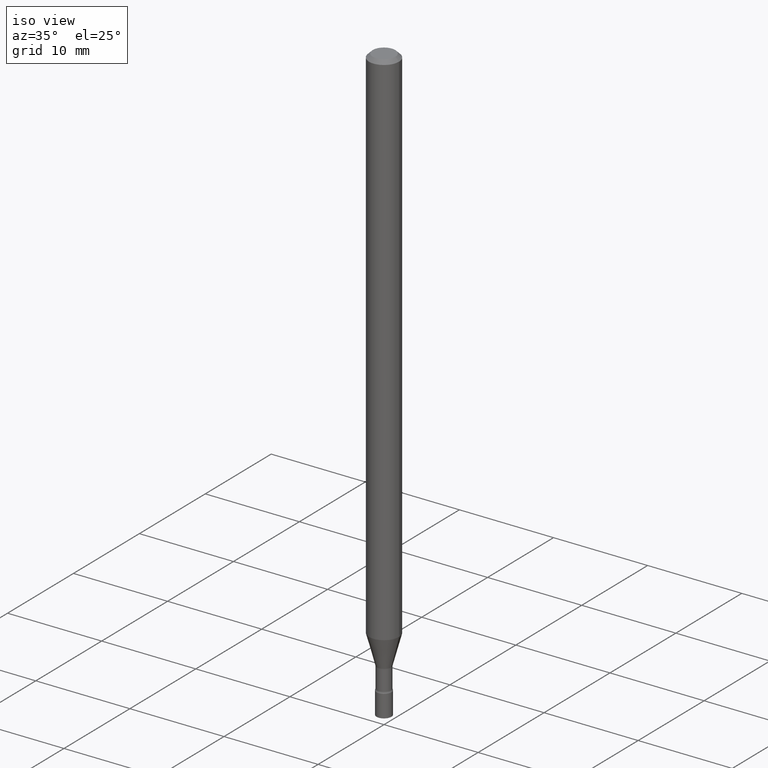
[diagram: clean part render]
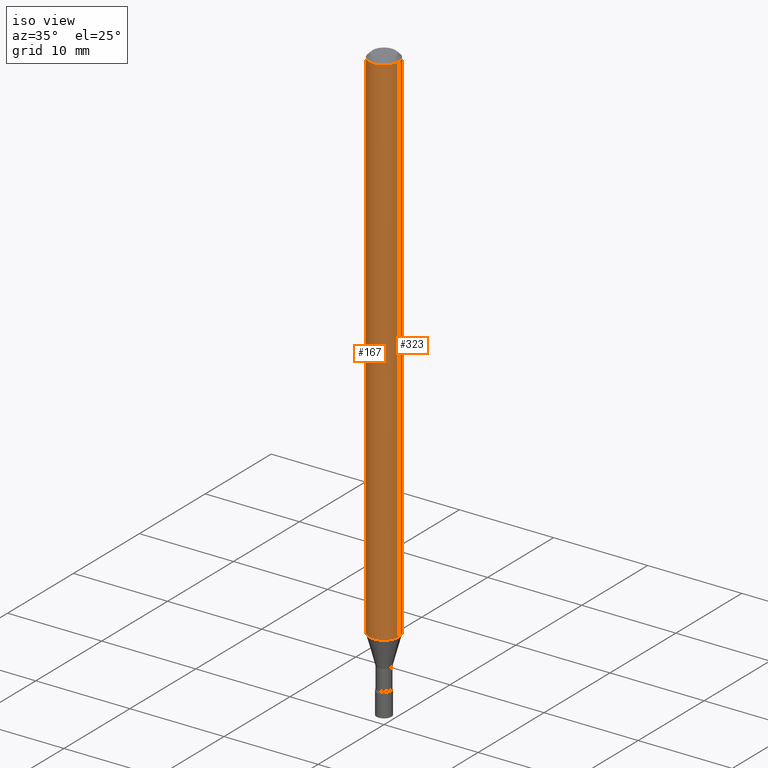
[diagram: same view with one multi-face feature highlighted, each face labeled with its STEP entity id]
A machine part, iso view. The highlighted faces form ONE feature: a constant-radius fillet chain: 2 tangent blend faces with common blend radius 1.5875 mm. The faces share edges in the B-rep.
Their STEP definitions:
[1] entity #323 (Cylinder):
#8 = CARTESIAN_POINT ( 'NONE',  ( 3.668203209277712094E-31, -5.237222008264728876E-17, -0.01500000000000003067 ) ) ;
#12 = CARTESIAN_POINT ( 'NONE',  ( 0.06250000000000000000, -4.888073874380389458E-16, -0.01500000000000003067 ) ) ;
#26 = CARTESIAN_POINT ( 'NONE',  ( -0.06250000000000000000, -7.200635243462433046E-15, -2.189536105567578161 ) ) ;
#30 = ORIENTED_EDGE ( 'NONE', *, *, #341, .F. ) ;
#38 = VERTEX_POINT ( 'NONE', #12 ) ;
#45 = EDGE_CURVE ( 'NONE', #513, #372, #113, .T. ) ;
#74 = AXIS2_PLACEMENT_3D ( 'NONE', #187, #230, #183 ) ;
#83 = EDGE_CURVE ( 'NONE', #372, #371, #93, .T. ) ;
#90 = DIRECTION ( 'NONE',  ( -2.445468806185136597E-29, 3.491481338843145583E-15, 1.000000000000000000 ) ) ;
#93 = LINE ( 'NONE', #208, #289 ) ;
#99 = EDGE_CURVE ( 'NONE', #38, #371, #427, .T. ) ;
#113 = CIRCLE ( 'NONE', #254, 0.06250000000000000000 ) ;
#117 = ORIENTED_EDGE ( 'NONE', *, *, #45, .T. ) ;
#127 = EDGE_LOOP ( 'NONE', ( #117, #160, #238, #30 ) ) ;
#137 = CARTESIAN_POINT ( 'NONE',  ( 5.354442246181599282E-29, -7.644724453312494084E-15, -2.189536105567578161 ) ) ;
#155 = DIRECTION ( 'NONE',  ( -2.445468806185136877E-29, 3.491481338843145188E-15, 1.000000000000000000 ) ) ;
#160 = ORIENTED_EDGE ( 'NONE', *, *, #83, .T. ) ;
#176 = DIRECTION ( 'NONE',  ( -2.445468806185136597E-29, 3.491481338843145583E-15, 1.000000000000000000 ) ) ;
#183 = DIRECTION ( 'NONE',  ( 1.000000000000000000, -6.982962677686266711E-15, 4.876176775795935793E-29 ) ) ;
#186 = AXIS2_PLACEMENT_3D ( 'NONE', #8, #176, #294 ) ;
#187 = CARTESIAN_POINT ( 'NONE',  ( 0.000000000000000000, 0.000000000000000000, 0.000000000000000000 ) ) ;
#190 = CARTESIAN_POINT ( 'NONE',  ( 0.06250000000000000000, -4.364351673553916694E-16, 3.047610484872459871E-30 ) ) ;
#208 = CARTESIAN_POINT ( 'NONE',  ( -0.06250000000000000000, 4.440892098500626162E-16, -3.074334431409316114E-30 ) ) ;
#220 = FACE_OUTER_BOUND ( 'NONE', #127, .T. ) ;
#225 = LINE ( 'NONE', #190, #370 ) ;
#230 = DIRECTION ( 'NONE',  ( -2.445468806185136597E-29, 3.491481338843145583E-15, 1.000000000000000000 ) ) ;
#238 = ORIENTED_EDGE ( 'NONE', *, *, #99, .F. ) ;
#246 = DIRECTION ( 'NONE',  ( 1.000000000000000000, -6.982962677686262766E-15, 0.000000000000000000 ) ) ;
#254 = AXIS2_PLACEMENT_3D ( 'NONE', #137, #90, #246 ) ;
#289 = VECTOR ( 'NONE', #325, 39.37007874015748143 ) ;
#294 = DIRECTION ( 'NONE',  ( 1.000000000000000000, -6.982962677686266711E-15, 0.000000000000000000 ) ) ;
#315 = CYLINDRICAL_SURFACE ( 'NONE', #74, 0.06250000000000000000 ) ;
#323 = ADVANCED_FACE ( 'NONE', ( #220 ), #315, .T. ) ;
#325 = DIRECTION ( 'NONE',  ( -2.445468806185136877E-29, 3.491481338843145188E-15, 1.000000000000000000 ) ) ;
#341 = EDGE_CURVE ( 'NONE', #513, #38, #225, .T. ) ;
#345 = CARTESIAN_POINT ( 'NONE',  ( -0.06250000000000000000, -3.404459126847508557E-15, -0.01500000000000003067 ) ) ;
#370 = VECTOR ( 'NONE', #155, 39.37007874015748143 ) ;
#371 = VERTEX_POINT ( 'NONE', #345 ) ;
#372 = VERTEX_POINT ( 'NONE', #26 ) ;
#427 = CIRCLE ( 'NONE', #186, 0.06250000000000000000 ) ;
#489 = CARTESIAN_POINT ( 'NONE',  ( 0.06250000000000000000, -8.081159620667887331E-15, -2.189536105567578161 ) ) ;
#513 = VERTEX_POINT ( 'NONE', #489 ) ;
[2] entity #167 (Cylinder):
#9 = CIRCLE ( 'NONE', #351, 0.06250000000000000000 ) ;
#10 = DIRECTION ( 'NONE',  ( 1.000000000000000000, -6.982962677686266711E-15, 4.876176775795935793E-29 ) ) ;
#12 = CARTESIAN_POINT ( 'NONE',  ( 0.06250000000000000000, -4.888073874380389458E-16, -0.01500000000000003067 ) ) ;
#15 = FACE_OUTER_BOUND ( 'NONE', #359, .T. ) ;
#26 = CARTESIAN_POINT ( 'NONE',  ( -0.06250000000000000000, -7.200635243462433046E-15, -2.189536105567578161 ) ) ;
#38 = VERTEX_POINT ( 'NONE', #12 ) ;
#52 = DIRECTION ( 'NONE',  ( 1.000000000000000000, -6.982962677686262766E-15, 0.000000000000000000 ) ) ;
#66 = CARTESIAN_POINT ( 'NONE',  ( 3.668203209277712094E-31, -5.237222008264728876E-17, -0.01500000000000003067 ) ) ;
#83 = EDGE_CURVE ( 'NONE', #372, #371, #93, .T. ) ;
#93 = LINE ( 'NONE', #208, #289 ) ;
#112 = DIRECTION ( 'NONE',  ( -2.445468806185136597E-29, 3.491481338843145583E-15, 1.000000000000000000 ) ) ;
#155 = DIRECTION ( 'NONE',  ( -2.445468806185136877E-29, 3.491481338843145188E-15, 1.000000000000000000 ) ) ;
#166 = CARTESIAN_POINT ( 'NONE',  ( 0.000000000000000000, 0.000000000000000000, 0.000000000000000000 ) ) ;
#167 = ADVANCED_FACE ( 'NONE', ( #15 ), #421, .T. ) ;
#190 = CARTESIAN_POINT ( 'NONE',  ( 0.06250000000000000000, -4.364351673553916694E-16, 3.047610484872459871E-30 ) ) ;
#194 = ORIENTED_EDGE ( 'NONE', *, *, #341, .T. ) ;
#203 = CIRCLE ( 'NONE', #467, 0.06250000000000000000 ) ;
#205 = EDGE_CURVE ( 'NONE', #372, #513, #9, .T. ) ;
#208 = CARTESIAN_POINT ( 'NONE',  ( -0.06250000000000000000, 4.440892098500626162E-16, -3.074334431409316114E-30 ) ) ;
#217 = CARTESIAN_POINT ( 'NONE',  ( 5.354442246181599282E-29, -7.644724453312494084E-15, -2.189536105567578161 ) ) ;
#218 = DIRECTION ( 'NONE',  ( -2.445468806185136597E-29, 3.491481338843145583E-15, 1.000000000000000000 ) ) ;
#225 = LINE ( 'NONE', #190, #370 ) ;
#228 = DIRECTION ( 'NONE',  ( 1.000000000000000000, -6.982962677686266711E-15, 0.000000000000000000 ) ) ;
#289 = VECTOR ( 'NONE', #325, 39.37007874015748143 ) ;
#296 = DIRECTION ( 'NONE',  ( -2.445468806185136597E-29, 3.491481338843145583E-15, 1.000000000000000000 ) ) ;
#302 = ORIENTED_EDGE ( 'NONE', *, *, #83, .F. ) ;
#325 = DIRECTION ( 'NONE',  ( -2.445468806185136877E-29, 3.491481338843145188E-15, 1.000000000000000000 ) ) ;
#326 = ORIENTED_EDGE ( 'NONE', *, *, #396, .F. ) ;
#329 = ORIENTED_EDGE ( 'NONE', *, *, #205, .T. ) ;
#341 = EDGE_CURVE ( 'NONE', #513, #38, #225, .T. ) ;
#345 = CARTESIAN_POINT ( 'NONE',  ( -0.06250000000000000000, -3.404459126847508557E-15, -0.01500000000000003067 ) ) ;
#351 = AXIS2_PLACEMENT_3D ( 'NONE', #217, #296, #52 ) ;
#359 = EDGE_LOOP ( 'NONE', ( #302, #329, #194, #326 ) ) ;
#370 = VECTOR ( 'NONE', #155, 39.37007874015748143 ) ;
#371 = VERTEX_POINT ( 'NONE', #345 ) ;
#372 = VERTEX_POINT ( 'NONE', #26 ) ;
#396 = EDGE_CURVE ( 'NONE', #371, #38, #203, .T. ) ;
#407 = AXIS2_PLACEMENT_3D ( 'NONE', #166, #218, #10 ) ;
#421 = CYLINDRICAL_SURFACE ( 'NONE', #407, 0.06250000000000000000 ) ;
#467 = AXIS2_PLACEMENT_3D ( 'NONE', #66, #112, #228 ) ;
#489 = CARTESIAN_POINT ( 'NONE',  ( 0.06250000000000000000, -8.081159620667887331E-15, -2.189536105567578161 ) ) ;
#513 = VERTEX_POINT ( 'NONE', #489 ) ;